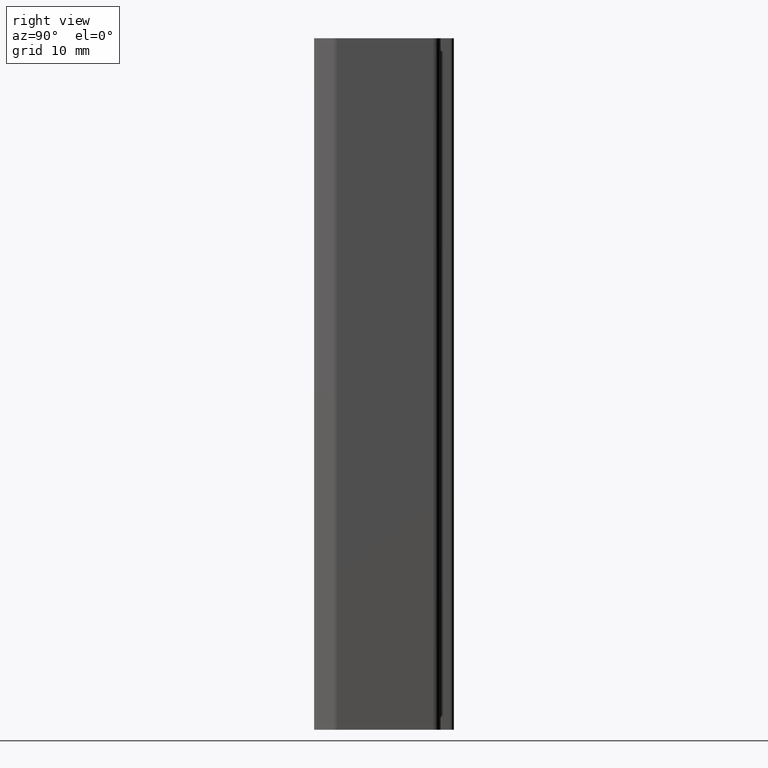
[diagram: clean part render]
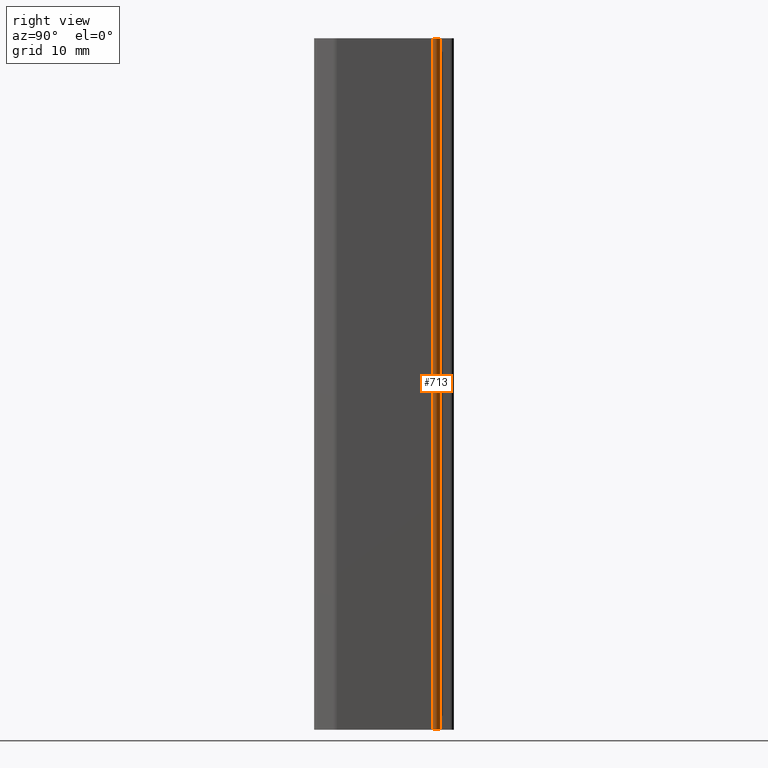
[diagram: same view with one face highlighted and labeled with its STEP entity id]
A machine part, right view. The second image highlights one B-rep face of the part: STEP entity #713.
In plain terms, the highlighted cylindrical surface (edge-blend (fillet) strip) has radius 1 mm, axis along (0, 0, 1).
Its self-contained STEP definition (entity closure, byte-faithful):
#50=FACE_OUTER_BOUND('',#88,.T.);
#88=EDGE_LOOP('',(#538,#539,#540,#541));
#142=LINE('',#1190,#200);
#143=LINE('',#1196,#201);
#200=VECTOR('',#959,100.);
#201=VECTOR('',#966,100.);
#248=CIRCLE('',#782,0.999999999996);
#249=CIRCLE('',#783,0.999999999996);
#314=VERTEX_POINT('',#1186);
#315=VERTEX_POINT('',#1188);
#316=VERTEX_POINT('',#1192);
#317=VERTEX_POINT('',#1194);
#408=EDGE_CURVE('',#314,#315,#142,.T.);
#409=EDGE_CURVE('',#314,#316,#248,.T.);
#410=EDGE_CURVE('',#317,#315,#249,.T.);
#411=EDGE_CURVE('',#316,#317,#143,.T.);
#538=ORIENTED_EDGE('',*,*,#409,.F.);
#539=ORIENTED_EDGE('',*,*,#408,.T.);
#540=ORIENTED_EDGE('',*,*,#410,.F.);
#541=ORIENTED_EDGE('',*,*,#411,.F.);
#680=CYLINDRICAL_SURFACE('',#781,0.999999999996);
#713=ADVANCED_FACE('',(#50),#680,.T.);
#781=AXIS2_PLACEMENT_3D('',#1191,#960,#961);
#782=AXIS2_PLACEMENT_3D('',#1193,#962,#963);
#783=AXIS2_PLACEMENT_3D('',#1195,#964,#965);
#959=DIRECTION('',(0.,0.,1.));
#960=DIRECTION('center_axis',(0.,0.,1.));
#961=DIRECTION('ref_axis',(-1.,1.75415237891476E-13,0.));
#962=DIRECTION('center_axis',(0.,0.,-1.));
#963=DIRECTION('ref_axis',(-1.,1.75415237891476E-13,0.));
#964=DIRECTION('center_axis',(0.,0.,1.));
#965=DIRECTION('ref_axis',(-1.,1.75415237891476E-13,0.));
#966=DIRECTION('',(0.,0.,1.));
#1186=CARTESIAN_POINT('',(12.9999993481441,16.0000002336921,0.));
#1188=CARTESIAN_POINT('',(12.9999993481441,16.0000002336921,100.));
#1190=CARTESIAN_POINT('',(12.9999993481441,16.0000002336921,0.));
#1191=CARTESIAN_POINT('Origin',(12.9999993481433,15.0000002336959,0.));
#1192=CARTESIAN_POINT('',(13.9999993481393,15.0000002336958,0.));
#1193=CARTESIAN_POINT('Origin',(12.9999993481433,15.0000002336959,0.));
#1194=CARTESIAN_POINT('',(13.9999993481393,15.0000002336958,100.));
#1195=CARTESIAN_POINT('Origin',(12.9999993481433,15.0000002336959,100.));
#1196=CARTESIAN_POINT('',(13.9999993481393,15.0000002336958,0.));